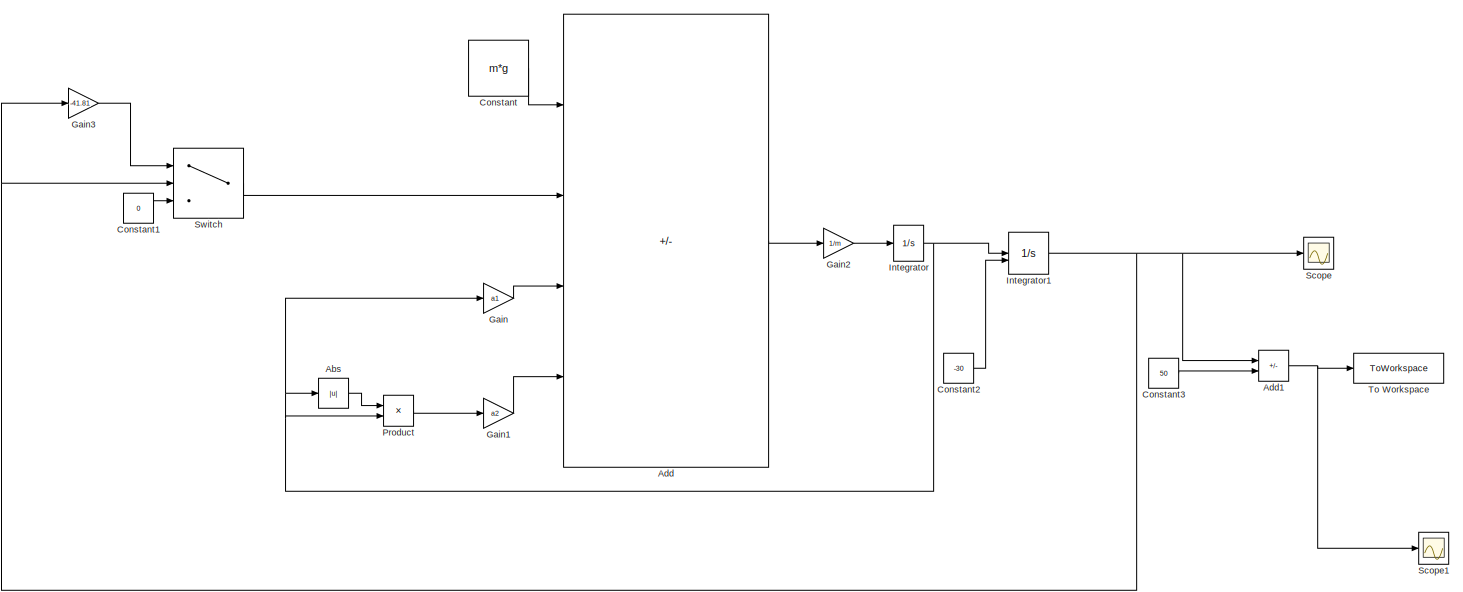
[diagram: root canvas - part 1/2, center side, full height]
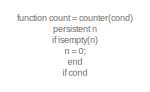
[diagram: root canvas - part 2/2, bottom left region]
MODEL slx_a72030767c83
KIND model
CONFIG AbsTol = auto
CONFIG EnableMultiTasking = off
CONFIG FixedStep = 0.01
CONFIG MaxStep = auto
CONFIG MinStep = auto
CONFIG RelTol = 1e-3
CONFIG SampleTimeConstraint = Unconstrained
CONFIG SolverName = FixedStepAuto
CONFIG StartTime = 0.0
CONFIG StopTime = 100
WORKSPACE source: mxarray member
WORKSPACE a1 = 1
WORKSPACE a2 = 1
WORKSPACE g = 9.8
WORKSPACE k = 20
WORKSPACE k2: Simulink.Parameter (value not decoded)
WORKSPACE m = 100
BLOCK [Abs] Abs
  SaturateOnIntegerOverflow = off
BLOCK [Sum] Add
  IconShape = rectangular
  Inputs = ++--
BLOCK [Sum] Add1
  IconShape = rectangular
  Inputs = -+
BLOCK [Constant] Constant
  Value = m*g
BLOCK [Constant] Constant1
  Value = 0
BLOCK [Constant] Constant2
  Value = -30
BLOCK [Constant] Constant3
  Value = 50
BLOCK [Gain] Gain
  Gain = a1
BLOCK [Gain] Gain1
  Gain = a2
BLOCK [Gain] Gain2
  Gain = 1/m
BLOCK [Gain] Gain3
  Gain = -41.81
BLOCK [Integrator] Integrator
BLOCK [Integrator] Integrator1
  InitialCondition = -30
  InitialConditionSource = external
BLOCK [Product] Product
BLOCK [Scope] Scope
  Floating = off
  NumInputPorts = 1
  ScopeSpecificationString = Simulink.scopes.TimeScopeBlockCfg('CurrentConfiguration', extmgr.ConfigurationSet(extmgr.Configuration('Core','General UI',true),extmgr.Configuration('Core','Source UI',true),extmgr.Configuration('Sources','WiredSimulink',true),extmgr.Configuration('Visuals','Time Domain',true,'SerializedDisplays',{struct('MinYLimReal','-39.99931','MaxYLimReal','59.9938','YLabelReal','','MinYLimMag','0.00000','Max...<+1389ch>
BLOCK [Scope] Scope1
  Floating = off
  NumInputPorts = 1
  ScopeSpecificationString = Simulink.scopes.TimeScopeBlockCfg('CurrentConfiguration', extmgr.ConfigurationSet(extmgr.Configuration('Core','General UI',true),extmgr.Configuration('Core','Source UI',true),extmgr.Configuration('Sources','WiredSimulink',true,'DataLoggingVariableName','ScopeData1'),extmgr.Configuration('Visuals','Time Domain',true,'SerializedDisplays',{struct('MinYLimReal','-9.9938','MaxYLimReal','89.99931','YLab...<+1421ch>
BLOCK [Switch] Switch
  Criteria = u2 > Threshold
  InputSameDT = off
  SaturateOnIntegerOverflow = off
BLOCK [ToWorkspace] To Workspace
  FixptAsFi = on
  MaxDataPoints = inf
  SampleTime = -1
  VariableName = y
ANNOTATION (root): function count = counter(cond) persistent n if isempty(n) n = 0; end if cond n = n + 1; end count = n; end
LINE Abs:1 -> Product:1
NET Add1:1 -> Scope1:1, To Workspace:1
LINE Add:1 -> Gain2:1
LINE Constant1:1 -> Switch:3
LINE Constant2:1 -> Integrator1:2
LINE Constant3:1 -> Add1:2
LINE Constant:1 -> Add:1
LINE Gain1:1 -> Add:4
LINE Gain2:1 -> Integrator:1
LINE Gain3:1 -> Switch:1
LINE Gain:1 -> Add:3
NET Integrator1:1 -> Add1:1, Gain3:1, Scope:1, Switch:2
NET Integrator:1 -> Abs:1, Gain:1, Integrator1:1, Product:2
LINE Product:1 -> Gain1:1
LINE Switch:1 -> Add:2
note: NET lines group one-source signal fan-out (src -> all destinations, sorted); 1:1 wires keep LINE
